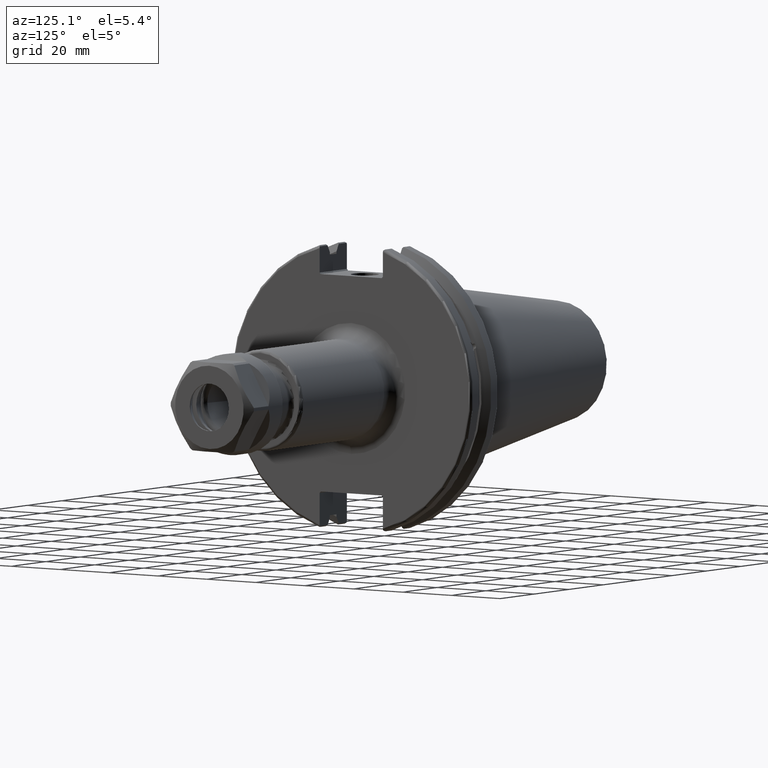
[diagram: clean part render]
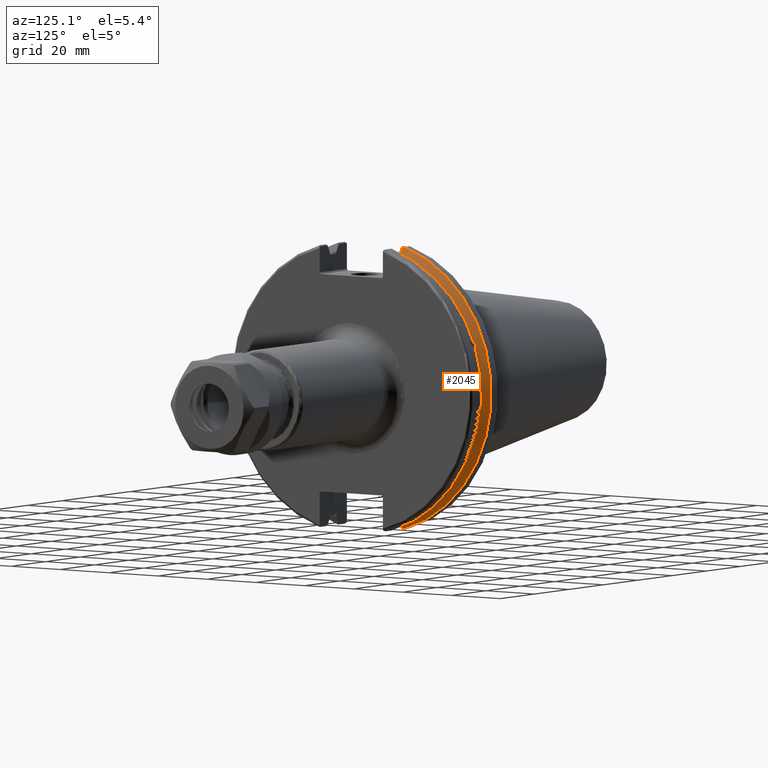
[diagram: same view with one face highlighted and labeled with its STEP entity id]
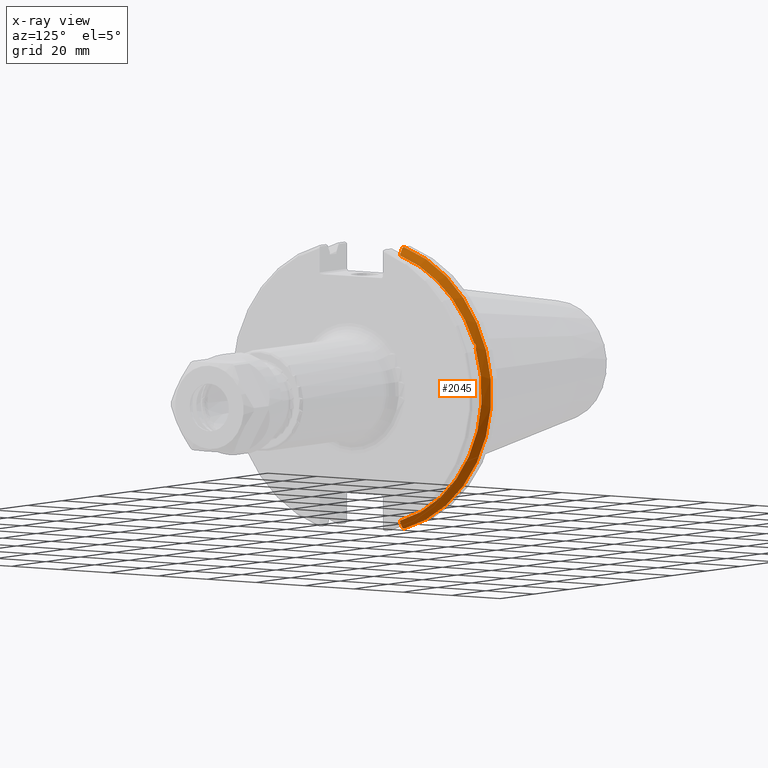
[diagram: x-ray of the same camera — body ghosted, the highlighted face saturated]
A machine part, auxiliary view. The second image highlights one B-rep face of the part: STEP entity #2045.
The next image is the same camera in x-ray: the body ghosted, the highlighted face saturated — about 0% of this face is hidden behind the body in this view.
In plain terms, the highlighted conical surface has half-angle 60 deg.
Its self-contained STEP definition (entity closure, byte-faithful):
#69=(
BOUNDED_CURVE()
B_SPLINE_CURVE(2,(#3709,#3710,#3711),.UNSPECIFIED.,.F.,.F.)
B_SPLINE_CURVE_WITH_KNOTS((3,3),(0.,0.275823910675371),.UNSPECIFIED.)
CURVE()
GEOMETRIC_REPRESENTATION_ITEM()
RATIONAL_B_SPLINE_CURVE((1.,1.00038235575501,1.00012873637129))
REPRESENTATION_ITEM('')
);
#74=(
BOUNDED_CURVE()
B_SPLINE_CURVE(2,(#3851,#3852,#3853),.UNSPECIFIED.,.F.,.F.)
B_SPLINE_CURVE_WITH_KNOTS((3,3),(0.,0.0648240472898098),.UNSPECIFIED.)
CURVE()
GEOMETRIC_REPRESENTATION_ITEM()
RATIONAL_B_SPLINE_CURVE((1.,1.00011477674852,1.00019140645975))
REPRESENTATION_ITEM('')
);
#75=(
BOUNDED_CURVE()
B_SPLINE_CURVE(2,(#3882,#3883,#3884),.UNSPECIFIED.,.F.,.F.)
B_SPLINE_CURVE_WITH_KNOTS((3,3),(0.0558332664507334,0.331657177124507),
 .UNSPECIFIED.)
CURVE()
GEOMETRIC_REPRESENTATION_ITEM()
RATIONAL_B_SPLINE_CURVE((1.00012873636786,1.0003823557448,1.))
REPRESENTATION_ITEM('')
);
#76=(
BOUNDED_CURVE()
B_SPLINE_CURVE(2,(#3899,#3900,#3901),.UNSPECIFIED.,.F.,.F.)
B_SPLINE_CURVE_WITH_KNOTS((3,3),(0.325260944932395,0.390084992222207),
 .UNSPECIFIED.)
CURVE()
GEOMETRIC_REPRESENTATION_ITEM()
RATIONAL_B_SPLINE_CURVE((1.00019140645963,1.00011477674845,1.))
REPRESENTATION_ITEM('')
);
#123=B_SPLINE_CURVE_WITH_KNOTS('',3,(#3522,#3523,#3524,#3525,#3526,#3527,
#3528,#3529,#3530,#3531,#3532,#3533,#3534,#3535),.UNSPECIFIED.,.F.,.F.,
(4,2,2,2,2,2,4),(0.426712868358719,0.441644498666906,0.48031331322313,0.518982127779354,
0.557650942335578,0.596319756891802,0.611251387199987),.UNSPECIFIED.);
#332=FACE_OUTER_BOUND('',#467,.T.);
#467=EDGE_LOOP('',(#1759,#1760,#1761,#1762,#1763,#1764,#1765,#1766));
#804=CIRCLE('',#2244,46.4219772964944);
#828=CIRCLE('',#2302,49.2125);
#831=CIRCLE('',#2312,46.4219772964944);
#942=VERTEX_POINT('',#3519);
#943=VERTEX_POINT('',#3521);
#955=VERTEX_POINT('',#3596);
#984=VERTEX_POINT('',#3706);
#985=VERTEX_POINT('',#3708);
#1006=VERTEX_POINT('',#3849);
#1012=VERTEX_POINT('',#3881);
#1013=VERTEX_POINT('',#3891);
#1164=EDGE_CURVE('',#943,#942,#123,.T.);
#1180=EDGE_CURVE('',#943,#955,#804,.T.);
#1221=EDGE_CURVE('',#985,#984,#69,.T.);
#1256=EDGE_CURVE('',#1006,#984,#74,.T.);
#1270=EDGE_CURVE('',#1012,#955,#75,.T.);
#1275=EDGE_CURVE('',#1006,#1013,#828,.T.);
#1277=EDGE_CURVE('',#1012,#1013,#76,.T.);
#1282=EDGE_CURVE('',#985,#942,#831,.T.);
#1759=ORIENTED_EDGE('',*,*,#1164,.T.);
#1760=ORIENTED_EDGE('',*,*,#1282,.F.);
#1761=ORIENTED_EDGE('',*,*,#1221,.T.);
#1762=ORIENTED_EDGE('',*,*,#1256,.F.);
#1763=ORIENTED_EDGE('',*,*,#1275,.T.);
#1764=ORIENTED_EDGE('',*,*,#1277,.F.);
#1765=ORIENTED_EDGE('',*,*,#1270,.T.);
#1766=ORIENTED_EDGE('',*,*,#1180,.F.);
#1964=CONICAL_SURFACE('',#2311,47.8172386482472,1.0471975511966);
#2045=ADVANCED_FACE('',(#332),#1964,.T.);
#2244=AXIS2_PLACEMENT_3D('',#3597,#2604,#2605);
#2302=AXIS2_PLACEMENT_3D('',#3893,#2767,#2768);
#2311=AXIS2_PLACEMENT_3D('',#3911,#2788,#2789);
#2312=AXIS2_PLACEMENT_3D('',#3912,#2790,#2791);
#2604=DIRECTION('center_axis',(1.,0.,0.));
#2605=DIRECTION('ref_axis',(0.,0.,-1.));
#2767=DIRECTION('center_axis',(1.,0.,0.));
#2768=DIRECTION('ref_axis',(0.,0.,-1.));
#2788=DIRECTION('center_axis',(-1.,0.,0.));
#2789=DIRECTION('ref_axis',(0.,1.,0.));
#2790=DIRECTION('center_axis',(1.,0.,0.));
#2791=DIRECTION('ref_axis',(0.,0.,-1.));
#3519=CARTESIAN_POINT('',(9.21910000000001,43.9096390749305,15.0646464421033));
#3521=CARTESIAN_POINT('',(9.2191,43.3201030900029,16.684383248648));
#3522=CARTESIAN_POINT('Ctrl Pts',(9.21910000000001,43.3201030900028,16.6843832486479));
#3523=CARTESIAN_POINT('Ctrl Pts',(9.20211843903392,43.361310694134,16.6592273018006));
#3524=CARTESIAN_POINT('Ctrl Pts',(9.18608675403322,43.4012416983557,16.6326763251437));
#3525=CARTESIAN_POINT('Ctrl Pts',(9.13238673845037,43.539103734322,16.5325130832406));
#3526=CARTESIAN_POINT('Ctrl Pts',(9.09621610663555,43.6406982153492,16.4411807953719));
#3527=CARTESIAN_POINT('Ctrl Pts',(9.04690868251975,43.8110833825827,16.2291323464527));
#3528=CARTESIAN_POINT('Ctrl Pts',(9.0341,43.8794096049168,16.10796730316));
#3529=CARTESIAN_POINT('Ctrl Pts',(9.03409999999999,43.9675796948952,15.8657219718732));
#3530=CARTESIAN_POINT('Ctrl Pts',(9.04690868251975,43.9931221605126,15.7289849146254));
#3531=CARTESIAN_POINT('Ctrl Pts',(9.09621610663555,43.9989016655819,15.4570249042867));
#3532=CARTESIAN_POINT('Ctrl Pts',(9.13238673845037,43.9797830409458,15.3217566390708));
#3533=CARTESIAN_POINT('Ctrl Pts',(9.18608675403322,43.9385582852181,15.1564111356409));
#3534=CARTESIAN_POINT('Ctrl Pts',(9.20211843903391,43.9250360001461,15.1104047527575));
#3535=CARTESIAN_POINT('Ctrl Pts',(9.2191,43.9096390749305,15.0646464421033));
#3596=CARTESIAN_POINT('',(9.2191,12.95,44.5791147973604));
#3597=CARTESIAN_POINT('Origin',(9.2191,0.,0.));
#3706=CARTESIAN_POINT('',(7.88638960562424,12.95,-46.9780755322918));
#3708=CARTESIAN_POINT('',(9.2191,12.95,-44.5791147973604));
#3709=CARTESIAN_POINT('Ctrl Pts',(9.2191,12.95,-44.5791147973604));
#3710=CARTESIAN_POINT('Ctrl Pts',(8.57020449055505,12.95,-45.7494966802211));
#3711=CARTESIAN_POINT('Ctrl Pts',(7.88638960562424,12.95,-46.9780755322917));
#3849=CARTESIAN_POINT('',(7.60799096595127,13.4317035994433,-47.3440544806494));
#3851=CARTESIAN_POINT('Ctrl Pts',(7.60799096595127,13.4317035994433,-47.3440544806494));
#3852=CARTESIAN_POINT('Ctrl Pts',(7.74826896663819,13.1896660169966,-47.1601640966264));
#3853=CARTESIAN_POINT('Ctrl Pts',(7.88638960562424,12.95,-46.9780755322918));
#3881=CARTESIAN_POINT('',(7.88638960562424,12.95,46.9780755322918));
#3882=CARTESIAN_POINT('Ctrl Pts',(7.88638960562424,12.95,46.9780755322918));
#3883=CARTESIAN_POINT('Ctrl Pts',(8.57020449054228,12.95,45.7494966802441));
#3884=CARTESIAN_POINT('Ctrl Pts',(9.2191,12.95,44.5791147973604));
#3891=CARTESIAN_POINT('',(7.60799096595127,13.4317035994433,47.3440544806494));
#3893=CARTESIAN_POINT('Origin',(7.60799096595127,0.,0.));
#3899=CARTESIAN_POINT('Ctrl Pts',(7.88638960562424,12.95,46.9780755322918));
#3900=CARTESIAN_POINT('Ctrl Pts',(7.74826896663818,13.1896660169966,47.1601640966265));
#3901=CARTESIAN_POINT('Ctrl Pts',(7.60799096595127,13.4317035994433,47.3440544806494));
#3911=CARTESIAN_POINT('Origin',(8.41354548297563,0.,0.));
#3912=CARTESIAN_POINT('Origin',(9.2191,0.,0.));